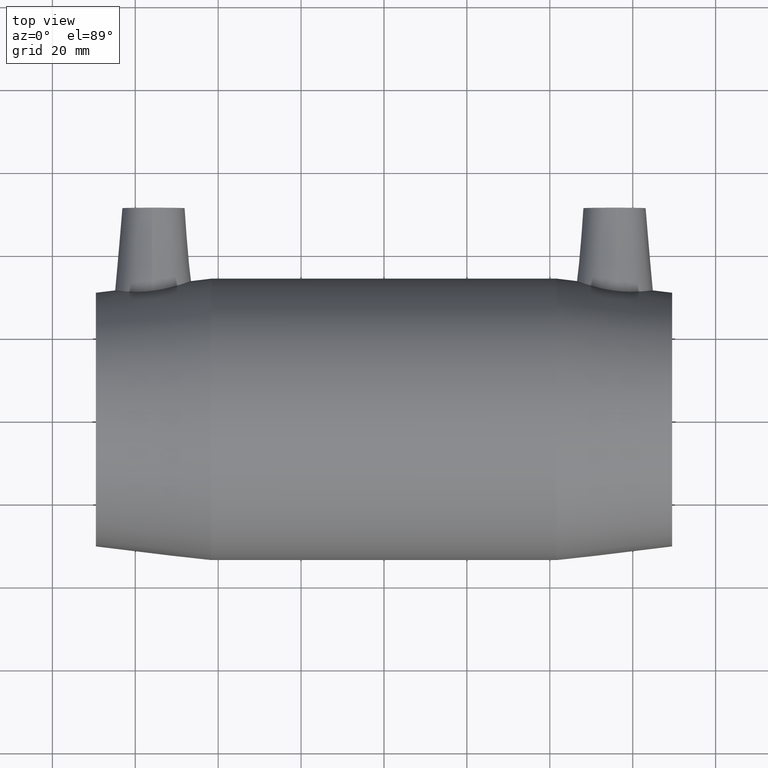
[diagram: clean part render]
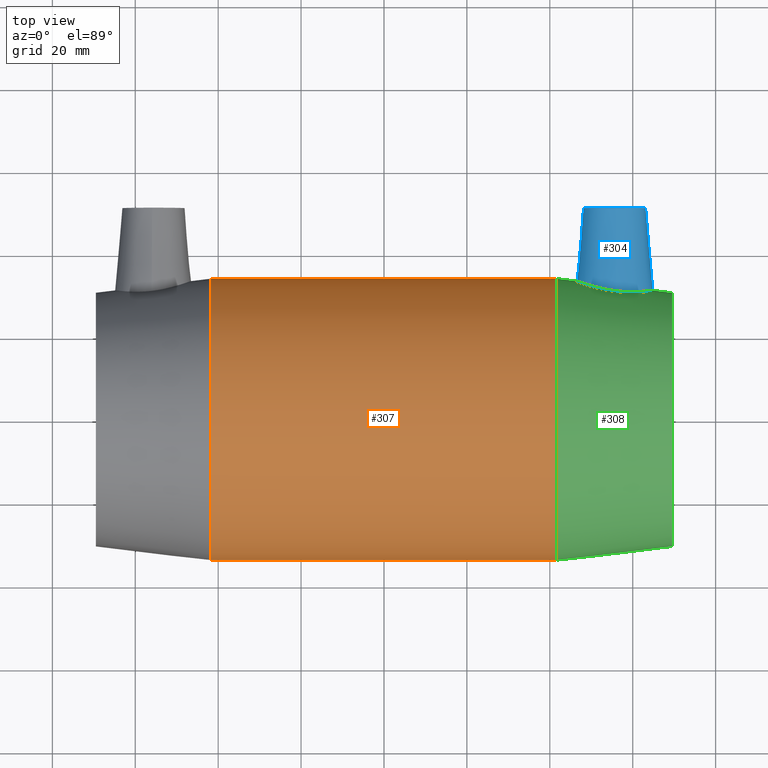
[diagram: same view with three faces highlighted in distinct colors, each labeled with its STEP entity id]
A machine part, top view with three faces highlighted in distinct colors.
Their STEP definitions:

[orange] entity #307 — the highlighted cylindrical surface (bore or boss wall) has radius 34 mm, axis along (1, 0, 0).
#33=FACE_BOUND('',#112,.T.);
#55=CYLINDRICAL_SURFACE('',#347,34.);
#73=FACE_OUTER_BOUND('',#111,.T.);
#111=EDGE_LOOP('',(#249));
#112=EDGE_LOOP('',(#250));
#155=CIRCLE('',#348,34.);
#156=CIRCLE('',#349,34.);
#183=VERTEX_POINT('',#593);
#184=VERTEX_POINT('',#595);
#211=EDGE_CURVE('',#183,#183,#155,.T.);
#212=EDGE_CURVE('',#184,#184,#156,.T.);
#249=ORIENTED_EDGE('',*,*,#211,.F.);
#250=ORIENTED_EDGE('',*,*,#212,.T.);
#307=ADVANCED_FACE('',(#73,#33),#55,.T.);
#347=AXIS2_PLACEMENT_3D('',#592,#425,#426);
#348=AXIS2_PLACEMENT_3D('',#594,#427,#428);
#349=AXIS2_PLACEMENT_3D('',#596,#429,#430);
#425=DIRECTION('center_axis',(1.,0.,0.));
#426=DIRECTION('ref_axis',(0.,1.,0.));
#427=DIRECTION('center_axis',(1.,0.,0.));
#428=DIRECTION('ref_axis',(0.,0.,-1.));
#429=DIRECTION('center_axis',(1.,0.,0.));
#430=DIRECTION('ref_axis',(0.,0.,-1.));
#592=CARTESIAN_POINT('Origin',(0.,0.,0.));
#593=CARTESIAN_POINT('',(41.7,34.,0.));
#594=CARTESIAN_POINT('Origin',(41.7,0.,0.));
#595=CARTESIAN_POINT('',(-41.7,34.,0.));
#596=CARTESIAN_POINT('Origin',(-41.7,0.,0.));

[blue] entity #304 — the highlighted conical surface has half-angle 5 deg.
#15=B_SPLINE_CURVE_WITH_KNOTS('',3,(#521,#522,#523,#524,#525,#526,#527,
#528,#529,#530,#531,#532,#533,#534,#535,#536,#537,#538,#539,#540,#541,#542,
#543,#544,#545,#546,#547,#548,#549,#550,#551,#552,#553,#554),
 .UNSPECIFIED.,.T.,.F.,(4,2,2,2,2,2,2,2,2,2,2,2,2,2,2,2,4),(0.,0.364856590834761,
0.729713181669521,1.08597432023197,1.44223545879442,1.79849659735688,2.15475773591933,
2.51961432675409,2.88447091758885,3.22228251719108,3.56009411679331,3.90054940818424,
4.24100469957517,4.5814599909661,4.92191528235703,5.25972688195927,5.5975384815615),
 .UNSPECIFIED.);
#17=CONICAL_SURFACE('',#343,7.5,5.);
#30=FACE_BOUND('',#106,.T.);
#70=FACE_OUTER_BOUND('',#105,.T.);
#105=EDGE_LOOP('',(#243));
#106=EDGE_LOOP('',(#244));
#154=CIRCLE('',#344,7.5);
#180=VERTEX_POINT('',#518);
#181=VERTEX_POINT('',#520);
#208=EDGE_CURVE('',#180,#180,#154,.T.);
#209=EDGE_CURVE('',#181,#181,#15,.T.);
#243=ORIENTED_EDGE('',*,*,#208,.F.);
#244=ORIENTED_EDGE('',*,*,#209,.F.);
#304=ADVANCED_FACE('',(#70,#30),#17,.T.);
#343=AXIS2_PLACEMENT_3D('',#517,#417,#418);
#344=AXIS2_PLACEMENT_3D('',#519,#419,#420);
#417=DIRECTION('center_axis',(0.,-1.,0.));
#418=DIRECTION('ref_axis',(-1.,0.,0.));
#419=DIRECTION('center_axis',(0.,1.,0.));
#420=DIRECTION('ref_axis',(-1.,0.,0.));
#517=CARTESIAN_POINT('Origin',(55.6,51.,0.));
#518=CARTESIAN_POINT('',(63.1,51.,9.18485099360515E-16));
#519=CARTESIAN_POINT('Origin',(55.6,51.,0.));
#520=CARTESIAN_POINT('',(56.0193723640627,30.8937668489756,9.2495652426104));
#521=CARTESIAN_POINT('Ctrl Pts',(56.0193723640628,30.8937668489755,9.24956524261039));
#522=CARTESIAN_POINT('Ctrl Pts',(54.8121787079285,31.0352059819469,9.29191198830419));
#523=CARTESIAN_POINT('Ctrl Pts',(53.5349825359445,31.264864936031,9.08010451579439));
#524=CARTESIAN_POINT('Ctrl Pts',(51.196498220514,31.8151913905117,8.15080568234896));
#525=CARTESIAN_POINT('Ctrl Pts',(50.1339402128853,32.1313570763322,7.43384981248541));
#526=CARTESIAN_POINT('Ctrl Pts',(48.4743767580176,32.6748035454698,5.78205907933334));
#527=CARTESIAN_POINT('Ctrl Pts',(47.7576175647788,32.9397514985168,4.74260902999342));
#528=CARTESIAN_POINT('Ctrl Pts',(46.8004727373702,33.3067315305941,2.44573011119199));
#529=CARTESIAN_POINT('Ctrl Pts',(46.5606831557212,33.4055279593722,1.1875371285415));
#530=CARTESIAN_POINT('Ctrl Pts',(46.5606831557212,33.4055279593722,-1.1875371285415));
#531=CARTESIAN_POINT('Ctrl Pts',(46.8004727373702,33.3067315305941,-2.44573011119199));
#532=CARTESIAN_POINT('Ctrl Pts',(47.7576175647788,32.9397514985168,-4.74260902999342));
#533=CARTESIAN_POINT('Ctrl Pts',(48.4743767580176,32.6748035454698,-5.78205907933334));
#534=CARTESIAN_POINT('Ctrl Pts',(50.1339402128853,32.1313570763322,-7.43384981248541));
#535=CARTESIAN_POINT('Ctrl Pts',(51.196498220514,31.8151913905117,-8.15080568234896));
#536=CARTESIAN_POINT('Ctrl Pts',(53.5349825359445,31.264864936031,-9.08010451579439));
#537=CARTESIAN_POINT('Ctrl Pts',(54.8121787079285,31.0352059819469,-9.29191198830419));
#538=CARTESIAN_POINT('Ctrl Pts',(57.1370828022253,30.7628118903544,-9.2103574490276));
#539=CARTESIAN_POINT('Ctrl Pts',(58.3269819819246,30.6925451678915,-8.94691583218011));
#540=CARTESIAN_POINT('Ctrl Pts',(60.5049146725895,30.6869078098578,-7.9645901513814));
#541=CARTESIAN_POINT('Ctrl Pts',(61.4930091488721,30.7474442654757,-7.24586901413925));
#542=CARTESIAN_POINT('Ctrl Pts',(63.0501510941485,30.8936613098227,-5.613217340546));
#543=CARTESIAN_POINT('Ctrl Pts',(63.7239766369651,30.9889930863502,-4.58579673717621));
#544=CARTESIAN_POINT('Ctrl Pts',(64.6163639991191,31.1290599916174,-2.34672905226111));
#545=CARTESIAN_POINT('Ctrl Pts',(64.8348514015949,31.170557742251,-1.1348509713031));
#546=CARTESIAN_POINT('Ctrl Pts',(64.8348514015949,31.170557742251,1.1348509713031));
#547=CARTESIAN_POINT('Ctrl Pts',(64.6163639991191,31.1290599916174,2.34672905226111));
#548=CARTESIAN_POINT('Ctrl Pts',(63.7239766369651,30.9889930863502,4.5857967371762));
#549=CARTESIAN_POINT('Ctrl Pts',(63.0501510941485,30.8936613098227,5.613217340546));
#550=CARTESIAN_POINT('Ctrl Pts',(61.4930091488721,30.7474442654757,7.24586901413925));
#551=CARTESIAN_POINT('Ctrl Pts',(60.5049146725895,30.6869078098578,7.96459015138139));
#552=CARTESIAN_POINT('Ctrl Pts',(58.3269819819247,30.6925451678915,8.94691583218011));
#553=CARTESIAN_POINT('Ctrl Pts',(57.1370828022253,30.7628118903544,9.2103574490276));
#554=CARTESIAN_POINT('Ctrl Pts',(56.0193723640628,30.8937668489755,9.2495652426104));

[green] entity #308 — the highlighted conical surface has half-angle 6.973 deg.
#15=B_SPLINE_CURVE_WITH_KNOTS('',3,(#521,#522,#523,#524,#525,#526,#527,
#528,#529,#530,#531,#532,#533,#534,#535,#536,#537,#538,#539,#540,#541,#542,
#543,#544,#545,#546,#547,#548,#549,#550,#551,#552,#553,#554),
 .UNSPECIFIED.,.T.,.F.,(4,2,2,2,2,2,2,2,2,2,2,2,2,2,2,2,4),(0.,0.364856590834761,
0.729713181669521,1.08597432023197,1.44223545879442,1.79849659735688,2.15475773591933,
2.51961432675409,2.88447091758885,3.22228251719108,3.56009411679331,3.90054940818424,
4.24100469957517,4.5814599909661,4.92191528235703,5.25972688195927,5.5975384815615),
 .UNSPECIFIED.);
#19=CONICAL_SURFACE('',#350,32.3,6.97276928602646);
#34=FACE_BOUND('',#114,.T.);
#35=FACE_BOUND('',#115,.T.);
#74=FACE_OUTER_BOUND('',#113,.T.);
#113=EDGE_LOOP('',(#251));
#114=EDGE_LOOP('',(#252));
#115=EDGE_LOOP('',(#253));
#155=CIRCLE('',#348,34.);
#157=CIRCLE('',#351,30.6);
#181=VERTEX_POINT('',#520);
#183=VERTEX_POINT('',#593);
#185=VERTEX_POINT('',#598);
#209=EDGE_CURVE('',#181,#181,#15,.T.);
#211=EDGE_CURVE('',#183,#183,#155,.T.);
#213=EDGE_CURVE('',#185,#185,#157,.T.);
#251=ORIENTED_EDGE('',*,*,#213,.F.);
#252=ORIENTED_EDGE('',*,*,#209,.T.);
#253=ORIENTED_EDGE('',*,*,#211,.T.);
#308=ADVANCED_FACE('',(#74,#34,#35),#19,.T.);
#348=AXIS2_PLACEMENT_3D('',#594,#427,#428);
#350=AXIS2_PLACEMENT_3D('',#597,#431,#432);
#351=AXIS2_PLACEMENT_3D('',#599,#433,#434);
#427=DIRECTION('center_axis',(1.,0.,0.));
#428=DIRECTION('ref_axis',(0.,0.,-1.));
#431=DIRECTION('center_axis',(-1.,0.,0.));
#432=DIRECTION('ref_axis',(0.,1.,0.));
#433=DIRECTION('center_axis',(1.,0.,0.));
#434=DIRECTION('ref_axis',(0.,0.,-1.));
#520=CARTESIAN_POINT('',(56.0193723640627,30.8937668489756,9.2495652426104));
#521=CARTESIAN_POINT('Ctrl Pts',(56.0193723640628,30.8937668489755,9.24956524261039));
#522=CARTESIAN_POINT('Ctrl Pts',(54.8121787079285,31.0352059819469,9.29191198830419));
#523=CARTESIAN_POINT('Ctrl Pts',(53.5349825359445,31.264864936031,9.08010451579439));
#524=CARTESIAN_POINT('Ctrl Pts',(51.196498220514,31.8151913905117,8.15080568234896));
#525=CARTESIAN_POINT('Ctrl Pts',(50.1339402128853,32.1313570763322,7.43384981248541));
#526=CARTESIAN_POINT('Ctrl Pts',(48.4743767580176,32.6748035454698,5.78205907933334));
#527=CARTESIAN_POINT('Ctrl Pts',(47.7576175647788,32.9397514985168,4.74260902999342));
#528=CARTESIAN_POINT('Ctrl Pts',(46.8004727373702,33.3067315305941,2.44573011119199));
#529=CARTESIAN_POINT('Ctrl Pts',(46.5606831557212,33.4055279593722,1.1875371285415));
#530=CARTESIAN_POINT('Ctrl Pts',(46.5606831557212,33.4055279593722,-1.1875371285415));
#531=CARTESIAN_POINT('Ctrl Pts',(46.8004727373702,33.3067315305941,-2.44573011119199));
#532=CARTESIAN_POINT('Ctrl Pts',(47.7576175647788,32.9397514985168,-4.74260902999342));
#533=CARTESIAN_POINT('Ctrl Pts',(48.4743767580176,32.6748035454698,-5.78205907933334));
#534=CARTESIAN_POINT('Ctrl Pts',(50.1339402128853,32.1313570763322,-7.43384981248541));
#535=CARTESIAN_POINT('Ctrl Pts',(51.196498220514,31.8151913905117,-8.15080568234896));
#536=CARTESIAN_POINT('Ctrl Pts',(53.5349825359445,31.264864936031,-9.08010451579439));
#537=CARTESIAN_POINT('Ctrl Pts',(54.8121787079285,31.0352059819469,-9.29191198830419));
#538=CARTESIAN_POINT('Ctrl Pts',(57.1370828022253,30.7628118903544,-9.2103574490276));
#539=CARTESIAN_POINT('Ctrl Pts',(58.3269819819246,30.6925451678915,-8.94691583218011));
#540=CARTESIAN_POINT('Ctrl Pts',(60.5049146725895,30.6869078098578,-7.9645901513814));
#541=CARTESIAN_POINT('Ctrl Pts',(61.4930091488721,30.7474442654757,-7.24586901413925));
#542=CARTESIAN_POINT('Ctrl Pts',(63.0501510941485,30.8936613098227,-5.613217340546));
#543=CARTESIAN_POINT('Ctrl Pts',(63.7239766369651,30.9889930863502,-4.58579673717621));
#544=CARTESIAN_POINT('Ctrl Pts',(64.6163639991191,31.1290599916174,-2.34672905226111));
#545=CARTESIAN_POINT('Ctrl Pts',(64.8348514015949,31.170557742251,-1.1348509713031));
#546=CARTESIAN_POINT('Ctrl Pts',(64.8348514015949,31.170557742251,1.1348509713031));
#547=CARTESIAN_POINT('Ctrl Pts',(64.6163639991191,31.1290599916174,2.34672905226111));
#548=CARTESIAN_POINT('Ctrl Pts',(63.7239766369651,30.9889930863502,4.5857967371762));
#549=CARTESIAN_POINT('Ctrl Pts',(63.0501510941485,30.8936613098227,5.613217340546));
#550=CARTESIAN_POINT('Ctrl Pts',(61.4930091488721,30.7474442654757,7.24586901413925));
#551=CARTESIAN_POINT('Ctrl Pts',(60.5049146725895,30.6869078098578,7.96459015138139));
#552=CARTESIAN_POINT('Ctrl Pts',(58.3269819819247,30.6925451678915,8.94691583218011));
#553=CARTESIAN_POINT('Ctrl Pts',(57.1370828022253,30.7628118903544,9.2103574490276));
#554=CARTESIAN_POINT('Ctrl Pts',(56.0193723640628,30.8937668489755,9.2495652426104));
#593=CARTESIAN_POINT('',(41.7,34.,0.));
#594=CARTESIAN_POINT('Origin',(41.7,0.,0.));
#597=CARTESIAN_POINT('Origin',(55.6,0.,0.));
#598=CARTESIAN_POINT('',(69.5,30.6,0.));
#599=CARTESIAN_POINT('Origin',(69.5,0.,0.));